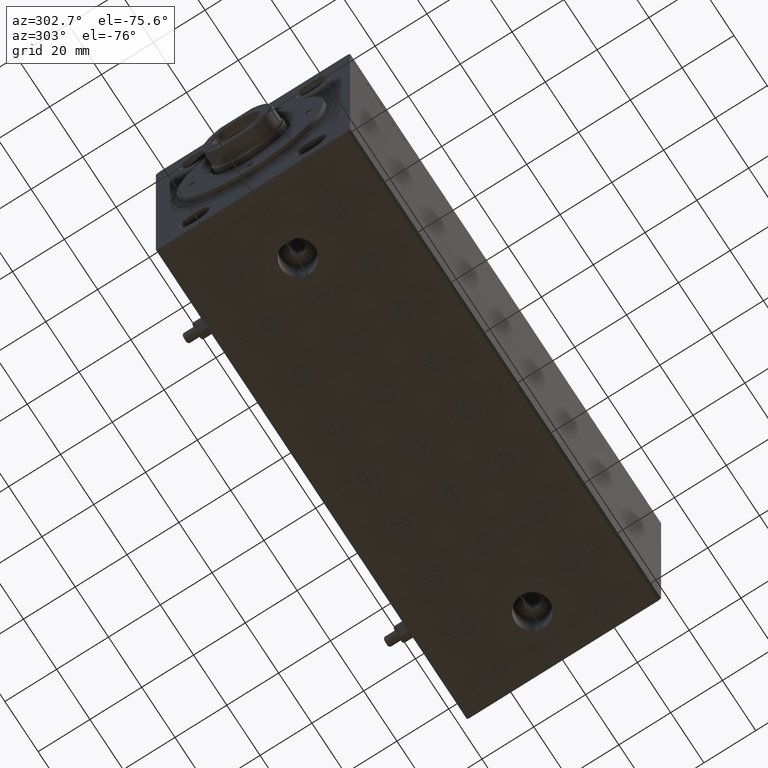
[diagram: clean part render]
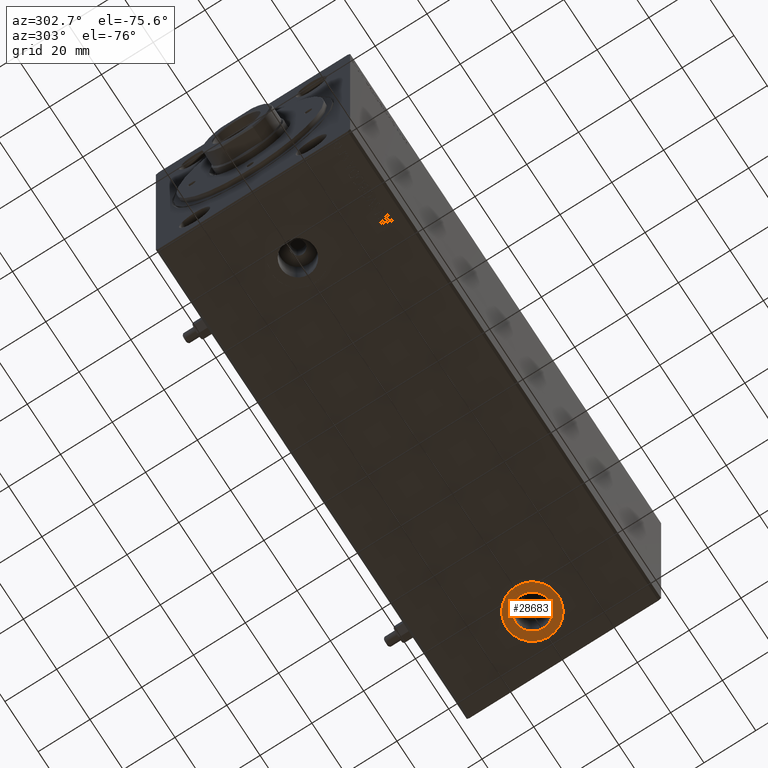
[diagram: same view with one face highlighted and labeled with its STEP entity id]
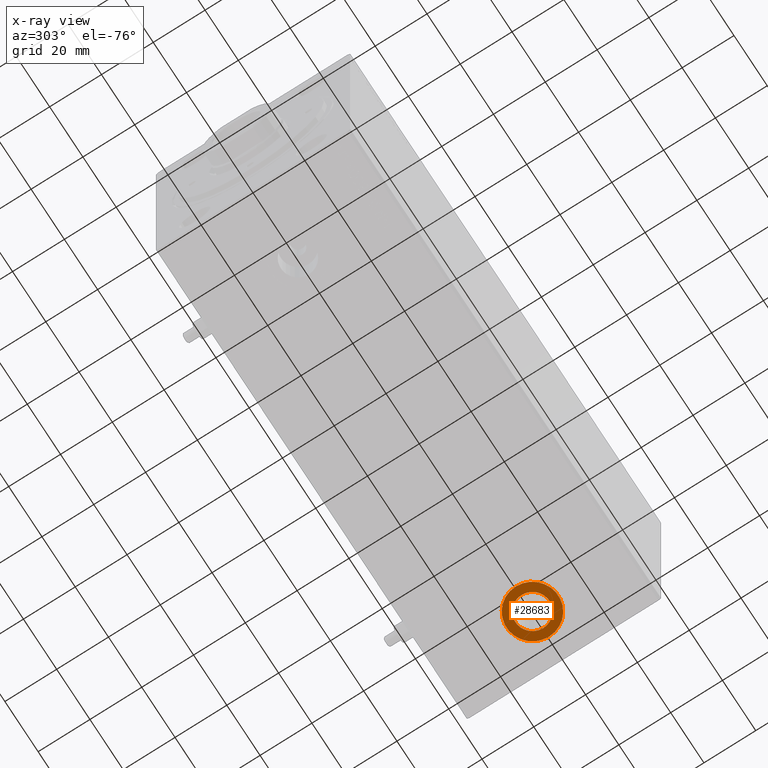
[diagram: x-ray of the same camera — body ghosted, the highlighted face saturated]
A machine part, auxiliary view. The second image highlights one B-rep face of the part: STEP entity #28683.
The next image is the same camera in x-ray: the body ghosted, the highlighted face saturated — about 0% of this face is hidden behind the body in this view.
In plain terms, the highlighted planar face has unit normal (0, 0, -1).
Its self-contained STEP definition (entity closure, byte-faithful):
#177 = DIRECTION ( 'NONE',  ( -1.000000000000000000, 0.000000000000000000, 0.000000000000000000 ) ) ;
#835 = CARTESIAN_POINT ( 'NONE',  ( 168.0000000000000284, -2.031972879945228792E-14, -49.89999999999999858 ) ) ;
#1183 = AXIS2_PLACEMENT_3D ( 'NONE', #20123, #3272, #17170 ) ;
#1594 = AXIS2_PLACEMENT_3D ( 'NONE', #835, #41872, #177 ) ;
#3272 = DIRECTION ( 'NONE',  ( 0.000000000000000000, 0.000000000000000000, -1.000000000000000000 ) ) ;
#4569 = EDGE_LOOP ( 'NONE', ( #34726, #12302 ) ) ;
#7824 = VERTEX_POINT ( 'NONE', #38453 ) ;
#10791 = VERTEX_POINT ( 'NONE', #42088 ) ;
#12302 = ORIENTED_EDGE ( 'NONE', *, *, #29083, .T. ) ;
#13709 = DIRECTION ( 'NONE',  ( -1.000000000000000000, 0.000000000000000000, 0.000000000000000000 ) ) ;
#14607 = DIRECTION ( 'NONE',  ( -1.000000000000000000, 0.000000000000000000, 0.000000000000000000 ) ) ;
#16226 = DIRECTION ( 'NONE',  ( 0.000000000000000000, 0.000000000000000000, -1.000000000000000000 ) ) ;
#17117 = CARTESIAN_POINT ( 'NONE',  ( 168.0000000000000284, -2.031972879945228792E-14, -49.89999999999999858 ) ) ;
#17170 = DIRECTION ( 'NONE',  ( -1.000000000000000000, 0.000000000000000000, -0.000000000000000000 ) ) ;
#17650 = CIRCLE ( 'NONE', #1594, 10.00000000000000888 ) ;
#18304 = AXIS2_PLACEMENT_3D ( 'NONE', #26675, #16226, #13709 ) ;
#19669 = FACE_BOUND ( 'NONE', #36931, .T. ) ;
#20123 = CARTESIAN_POINT ( 'NONE',  ( 168.0000000000000284, -2.031972879945228792E-14, -49.89999999999999858 ) ) ;
#20372 = AXIS2_PLACEMENT_3D ( 'NONE', #42173, #28501, #14607 ) ;
#20583 = FACE_OUTER_BOUND ( 'NONE', #4569, .T. ) ;
#21368 = EDGE_CURVE ( 'NONE', #7824, #10791, #17650, .T. ) ;
#21530 = AXIS2_PLACEMENT_3D ( 'NONE', #17117, #31005, #44899 ) ;
#21983 = VERTEX_POINT ( 'NONE', #39163 ) ;
#26675 = CARTESIAN_POINT ( 'NONE',  ( 168.0000000000000284, -2.031972879945228792E-14, -49.89999999999999858 ) ) ;
#28501 = DIRECTION ( 'NONE',  ( 0.000000000000000000, 0.000000000000000000, -1.000000000000000000 ) ) ;
#28683 = ADVANCED_FACE ( 'NONE', ( #19669, #20583 ), #37673, .T. ) ;
#28945 = CARTESIAN_POINT ( 'NONE',  ( 161.4200000000000443, -2.031972879945228792E-14, -49.89999999999999858 ) ) ;
#29083 = EDGE_CURVE ( 'NONE', #10791, #7824, #38316, .T. ) ;
#29831 = EDGE_CURVE ( 'NONE', #21983, #40680, #40138, .T. ) ;
#31005 = DIRECTION ( 'NONE',  ( 0.000000000000000000, 0.000000000000000000, -1.000000000000000000 ) ) ;
#31191 = ORIENTED_EDGE ( 'NONE', *, *, #29831, .F. ) ;
#33361 = ORIENTED_EDGE ( 'NONE', *, *, #40570, .F. ) ;
#34726 = ORIENTED_EDGE ( 'NONE', *, *, #21368, .T. ) ;
#36931 = EDGE_LOOP ( 'NONE', ( #33361, #31191 ) ) ;
#37673 = PLANE ( 'NONE',  #1183 ) ;
#37840 = CIRCLE ( 'NONE', #20372, 6.580000000000002736 ) ;
#38316 = CIRCLE ( 'NONE', #21530, 10.00000000000000888 ) ;
#38453 = CARTESIAN_POINT ( 'NONE',  ( 158.0000000000000284, -2.031972879945228792E-14, -49.89999999999999858 ) ) ;
#39163 = CARTESIAN_POINT ( 'NONE',  ( 174.5800000000000409, -1.951391120561332257E-14, -49.89999999999999858 ) ) ;
#40138 = CIRCLE ( 'NONE', #18304, 6.580000000000002736 ) ;
#40570 = EDGE_CURVE ( 'NONE', #40680, #21983, #37840, .T. ) ;
#40680 = VERTEX_POINT ( 'NONE', #28945 ) ;
#41872 = DIRECTION ( 'NONE',  ( 0.000000000000000000, 0.000000000000000000, -1.000000000000000000 ) ) ;
#42088 = CARTESIAN_POINT ( 'NONE',  ( 178.0000000000000568, -1.909508200030493329E-14, -49.89999999999999858 ) ) ;
#42173 = CARTESIAN_POINT ( 'NONE',  ( 168.0000000000000284, -2.031972879945228792E-14, -49.89999999999999858 ) ) ;
#44899 = DIRECTION ( 'NONE',  ( -1.000000000000000000, 0.000000000000000000, 0.000000000000000000 ) ) ;